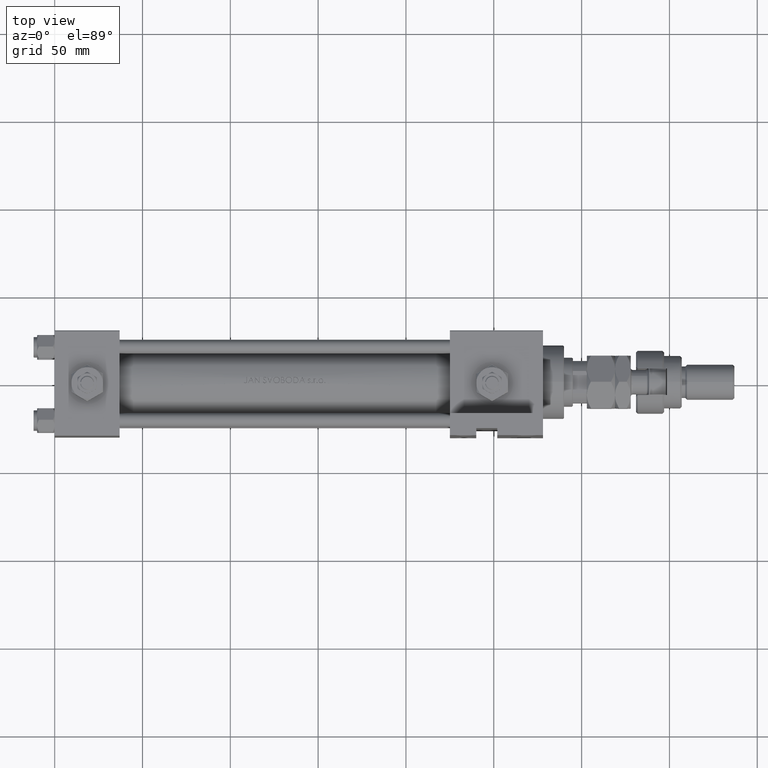
[diagram: clean part render]
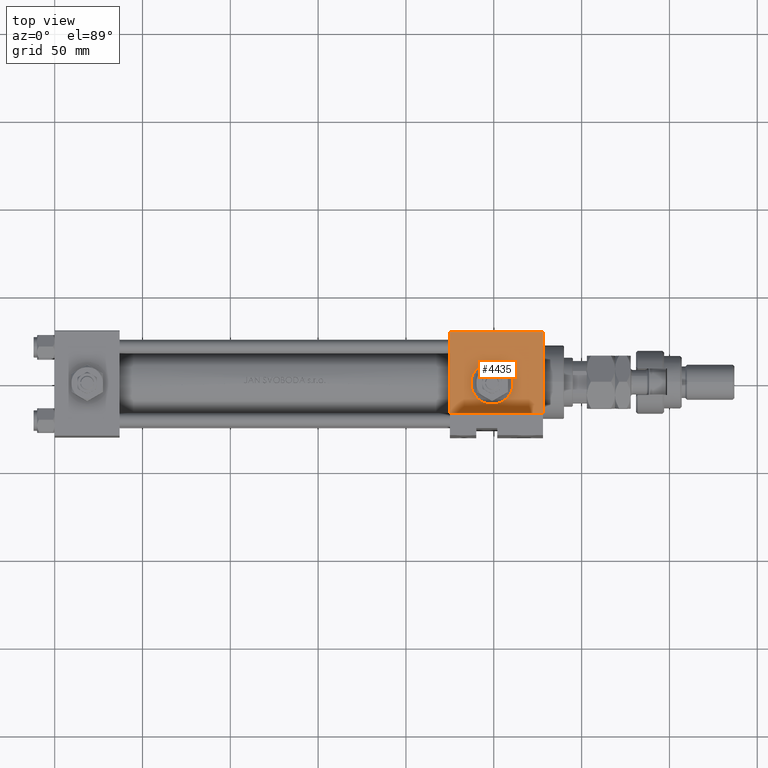
[diagram: same view with one face highlighted and labeled with its STEP entity id]
A machine part, top view. The second image highlights one B-rep face of the part: STEP entity #4435.
In plain terms, the highlighted planar face has unit normal (0, 0, -1).
Its self-contained STEP definition (entity closure, byte-faithful):
#125 = DIRECTION ( 'NONE',  ( 0.000000000000000000, -0.000000000000000000, 1.000000000000000000 ) ) ;
#1223 = ORIENTED_EDGE ( 'NONE', *, *, #4725, .T. ) ;
#2478 = VECTOR ( 'NONE', #35212, 1000.000000000000000 ) ;
#2931 = CARTESIAN_POINT ( 'NONE',  ( 225.0000000000000000, -30.00000000000000000, 29.49999999999999289 ) ) ;
#3589 = AXIS2_PLACEMENT_3D ( 'NONE', #46423, #34224, #22013 ) ;
#4435 = ADVANCED_FACE ( 'NONE', ( #8492, #8765 ), #50286, .F. ) ;
#4725 = EDGE_CURVE ( 'NONE', #29832, #11911, #18911, .T. ) ;
#5796 = CARTESIAN_POINT ( 'NONE',  ( 225.0000000000000000, -30.00000000000000000, -17.49999999999999645 ) ) ;
#5908 = VECTOR ( 'NONE', #31125, 1000.000000000000000 ) ;
#6331 = DIRECTION ( 'NONE',  ( 1.000000000000000000, -1.309225264888155637E-16, 0.000000000000000000 ) ) ;
#6480 = EDGE_CURVE ( 'NONE', #12270, #29832, #36024, .T. ) ;
#7473 = CIRCLE ( 'NONE', #45584, 12.00000000000003197 ) ;
#8492 = FACE_BOUND ( 'NONE', #33243, .T. ) ;
#8765 = FACE_OUTER_BOUND ( 'NONE', #47804, .T. ) ;
#9941 = DIRECTION ( 'NONE',  ( 0.000000000000000000, -1.000000000000000000, -8.673617379884036705E-17 ) ) ;
#11911 = VERTEX_POINT ( 'NONE', #36897 ) ;
#12270 = VERTEX_POINT ( 'NONE', #51797 ) ;
#14200 = LINE ( 'NONE', #5796, #33445 ) ;
#15122 = CARTESIAN_POINT ( 'NONE',  ( 278.0000000000000000, -30.00000000000000000, 29.49999999999999289 ) ) ;
#17829 = EDGE_CURVE ( 'NONE', #38406, #48481, #7473, .T. ) ;
#18911 = LINE ( 'NONE', #22460, #5908 ) ;
#19655 = ORIENTED_EDGE ( 'NONE', *, *, #19948, .F. ) ;
#19876 = ORIENTED_EDGE ( 'NONE', *, *, #6480, .T. ) ;
#19948 = EDGE_CURVE ( 'NONE', #12270, #49599, #24429, .T. ) ;
#20622 = CARTESIAN_POINT ( 'NONE',  ( 278.0000000000000000, -30.00000000000000000, 29.99999999999999289 ) ) ;
#21932 = CARTESIAN_POINT ( 'NONE',  ( 278.0000000000000000, -30.00000000000000000, -17.49999999999998224 ) ) ;
#22013 = DIRECTION ( 'NONE',  ( 0.000000000000000000, 0.000000000000000000, -1.000000000000000000 ) ) ;
#22460 = CARTESIAN_POINT ( 'NONE',  ( 225.0000000000000000, -30.00000000000000000, 29.99999999999999289 ) ) ;
#22611 = CARTESIAN_POINT ( 'NONE',  ( 249.0000000000000000, -30.00000000000000000, -12.00000000000003197 ) ) ;
#22620 = CIRCLE ( 'NONE', #3589, 12.00000000000003197 ) ;
#24429 = LINE ( 'NONE', #20622, #38757 ) ;
#26765 = DIRECTION ( 'NONE',  ( 0.000000000000000000, 0.000000000000000000, -1.000000000000000000 ) ) ;
#27634 = ORIENTED_EDGE ( 'NONE', *, *, #44687, .F. ) ;
#28755 = DIRECTION ( 'NONE',  ( 0.000000000000000000, 0.000000000000000000, -1.000000000000000000 ) ) ;
#29662 = DIRECTION ( 'NONE',  ( -0.000000000000000000, 1.000000000000000000, 0.000000000000000000 ) ) ;
#29832 = VERTEX_POINT ( 'NONE', #2931 ) ;
#30297 = ORIENTED_EDGE ( 'NONE', *, *, #17829, .F. ) ;
#31125 = DIRECTION ( 'NONE',  ( 0.000000000000000000, 0.000000000000000000, -1.000000000000000000 ) ) ;
#33243 = EDGE_LOOP ( 'NONE', ( #30297, #27634 ) ) ;
#33432 = EDGE_CURVE ( 'NONE', #11911, #49599, #14200, .T. ) ;
#33445 = VECTOR ( 'NONE', #6331, 1000.000000000000000 ) ;
#33469 = CARTESIAN_POINT ( 'NONE',  ( 278.0000000000000000, -30.00000000000000000, 29.99999999999999289 ) ) ;
#34224 = DIRECTION ( 'NONE',  ( 0.000000000000000000, -1.000000000000000000, -8.673617379884036705E-17 ) ) ;
#34595 = CARTESIAN_POINT ( 'NONE',  ( 249.0000000000000000, -30.00000000000000000, 12.00000000000003197 ) ) ;
#35212 = DIRECTION ( 'NONE',  ( -1.000000000000000000, 0.000000000000000000, 0.000000000000000000 ) ) ;
#36024 = LINE ( 'NONE', #15122, #2478 ) ;
#36897 = CARTESIAN_POINT ( 'NONE',  ( 225.0000000000000000, -30.00000000000000000, -17.49999999999999645 ) ) ;
#38406 = VERTEX_POINT ( 'NONE', #22611 ) ;
#38757 = VECTOR ( 'NONE', #28755, 1000.000000000000000 ) ;
#39498 = CARTESIAN_POINT ( 'NONE',  ( 249.0000000000000000, -30.00000000000000000, 0.000000000000000000 ) ) ;
#44687 = EDGE_CURVE ( 'NONE', #48481, #38406, #22620, .T. ) ;
#44852 = ORIENTED_EDGE ( 'NONE', *, *, #33432, .T. ) ;
#45584 = AXIS2_PLACEMENT_3D ( 'NONE', #39498, #9941, #26765 ) ;
#46423 = CARTESIAN_POINT ( 'NONE',  ( 249.0000000000000000, -30.00000000000000000, 0.000000000000000000 ) ) ;
#47804 = EDGE_LOOP ( 'NONE', ( #19655, #19876, #1223, #44852 ) ) ;
#48481 = VERTEX_POINT ( 'NONE', #34595 ) ;
#49599 = VERTEX_POINT ( 'NONE', #21932 ) ;
#50286 = PLANE ( 'NONE',  #52660 ) ;
#51797 = CARTESIAN_POINT ( 'NONE',  ( 278.0000000000000000, -30.00000000000000000, 29.49999999999999289 ) ) ;
#52660 = AXIS2_PLACEMENT_3D ( 'NONE', #33469, #29662, #125 ) ;